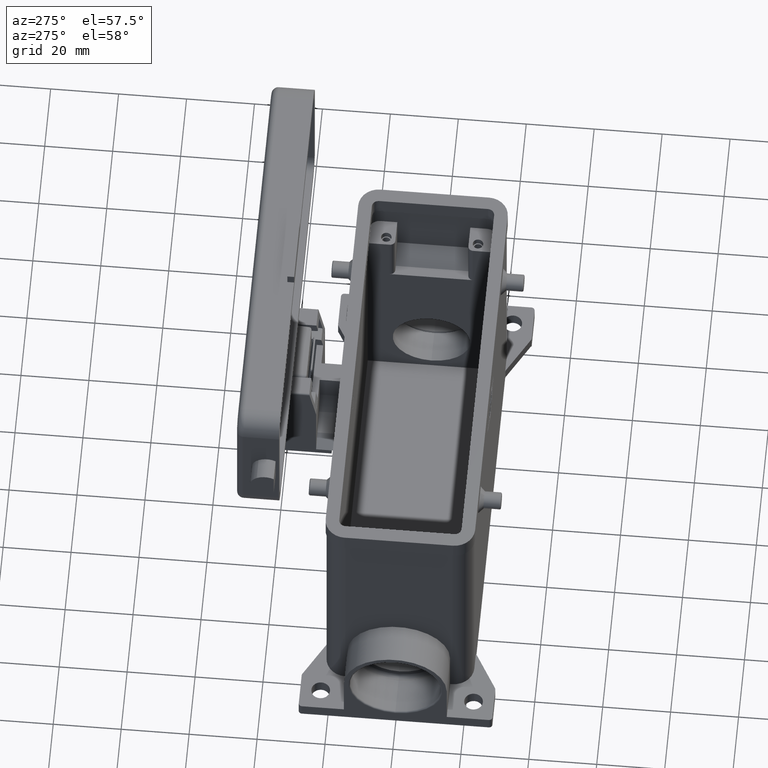
[diagram: clean part render]
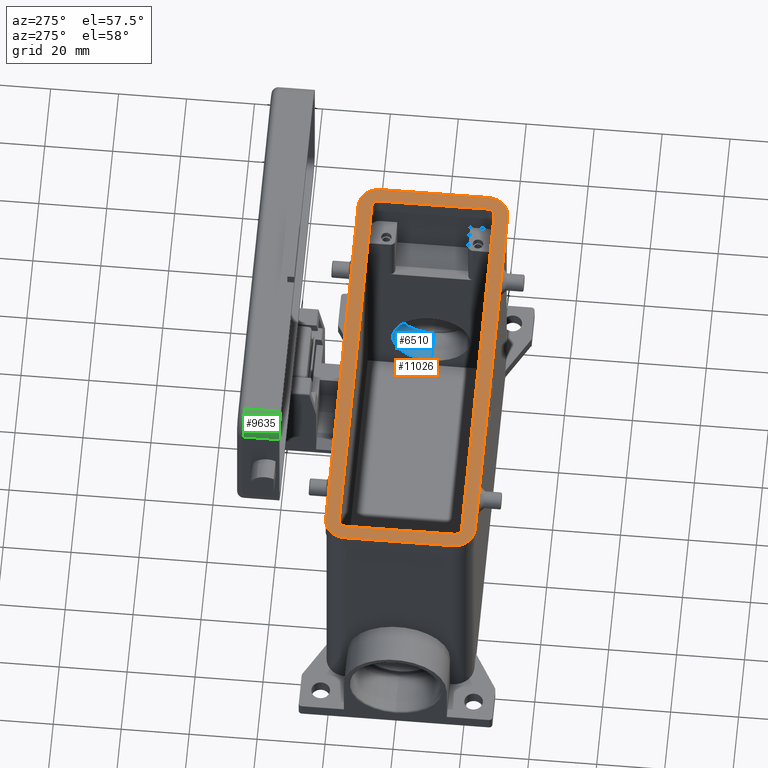
[diagram: same view with three faces highlighted in distinct colors, each labeled with its STEP entity id]
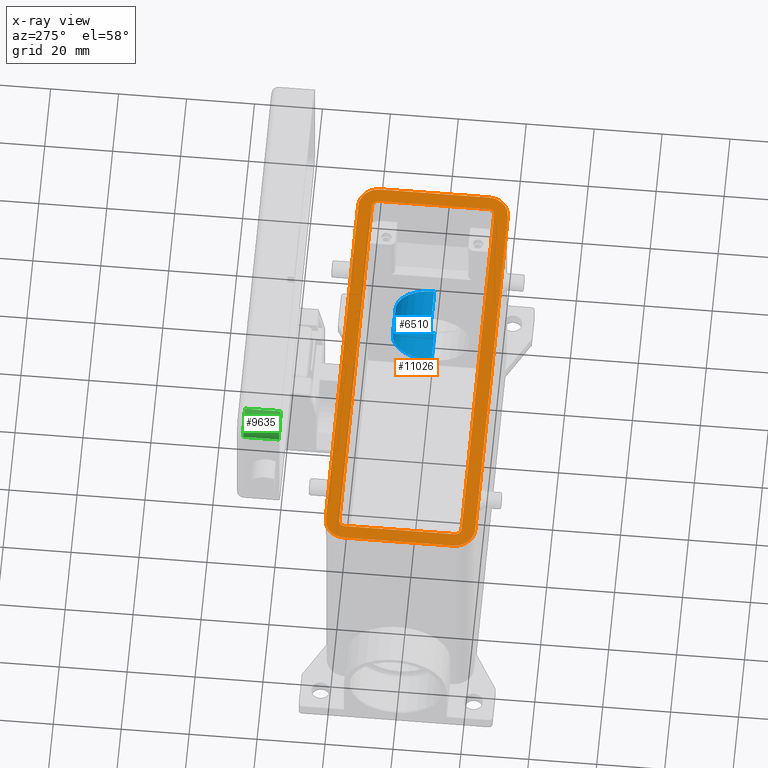
[diagram: x-ray of the same camera — body ghosted, the three highlighted faces saturated]
A machine part, auxiliary view with three faces highlighted in distinct colors.
The next image is the same camera in x-ray (body ghosted, the three faces saturated) — at least one of them is partly hidden behind the body in this view.
Their STEP definitions:

[orange] entity #11026 — the highlighted planar face has unit normal (0, 0, 1).
#10881=CARTESIAN_POINT('',(2.498002E-015,-1.179612E-015,29.000000000000007));
#10882=DIRECTION('',(0.0,0.0,1.0));
#10883=DIRECTION('',(1.0,0.0,0.0));
#10884=AXIS2_PLACEMENT_3D('',#10881,#10882,#10883);
#10885=PLANE('',#10884);
#10886=CARTESIAN_POINT('',(54.750000000000014,21.999999999999996,29.000000000000007));
#10887=VERTEX_POINT('',#10886);
#10888=CARTESIAN_POINT('',(60.750000000000021,15.999999999999996,29.000000000000007));
#10889=VERTEX_POINT('',#10888);
#10890=CARTESIAN_POINT('',(54.750000000000014,15.999999999999996,29.000000000000004));
#10891=DIRECTION('',(0.0,0.0,-1.0));
#10892=DIRECTION('',(-1.0,0.0,0.0));
#10893=AXIS2_PLACEMENT_3D('',#10890,#10891,#10892);
#10894=CIRCLE('',#10893,6.000000000000001);
#10895=EDGE_CURVE('',#10887,#10889,#10894,.T.);
#10896=ORIENTED_EDGE('',*,*,#10895,.F.);
#10897=CARTESIAN_POINT('',(-54.750000000000014,21.999999999999996,29.000000000000007));
#10898=VERTEX_POINT('',#10897);
#10899=CARTESIAN_POINT('',(-54.750000000000014,21.999999999999996,29.000000000000007));
#10900=DIRECTION('',(1.0,0.0,0.0));
#10901=VECTOR('',#10900,109.500000000000030);
#10902=LINE('',#10899,#10901);
#10903=EDGE_CURVE('',#10898,#10887,#10902,.T.);
#10904=ORIENTED_EDGE('',*,*,#10903,.F.);
#10905=CARTESIAN_POINT('',(-60.750000000000021,15.999999999999996,29.000000000000007));
#10906=VERTEX_POINT('',#10905);
#10907=CARTESIAN_POINT('',(-54.750000000000007,15.999999999999996,29.000000000000004));
#10908=DIRECTION('',(0.0,0.0,-1.0));
#10909=DIRECTION('',(0.0,-1.0,0.0));
#10910=AXIS2_PLACEMENT_3D('',#10907,#10908,#10909);
#10911=CIRCLE('',#10910,6.000000000000001);
#10912=EDGE_CURVE('',#10906,#10898,#10911,.T.);
#10913=ORIENTED_EDGE('',*,*,#10912,.F.);
#10914=CARTESIAN_POINT('',(-60.750000000000021,-15.999999999999996,29.000000000000007));
#10915=VERTEX_POINT('',#10914);
#10916=CARTESIAN_POINT('',(-60.750000000000021,-15.999999999999996,29.000000000000007));
#10917=DIRECTION('',(0.0,1.0,0.0));
#10918=VECTOR('',#10917,31.999999999999993);
#10919=LINE('',#10916,#10918);
#10920=EDGE_CURVE('',#10915,#10906,#10919,.T.);
#10921=ORIENTED_EDGE('',*,*,#10920,.F.);
#10922=CARTESIAN_POINT('',(-54.750000000000014,-21.999999999999996,29.000000000000007));
#10923=VERTEX_POINT('',#10922);
#10924=CARTESIAN_POINT('',(-54.750000000000014,-15.999999999999996,29.000000000000004));
#10925=DIRECTION('',(0.0,0.0,-1.0));
#10926=DIRECTION('',(1.0,0.0,0.0));
#10927=AXIS2_PLACEMENT_3D('',#10924,#10925,#10926);
#10928=CIRCLE('',#10927,6.000000000000001);
#10929=EDGE_CURVE('',#10923,#10915,#10928,.T.);
#10930=ORIENTED_EDGE('',*,*,#10929,.F.);
#10931=CARTESIAN_POINT('',(54.750000000000014,-21.999999999999996,29.000000000000007));
#10932=VERTEX_POINT('',#10931);
#10933=CARTESIAN_POINT('',(54.750000000000014,-21.999999999999996,29.000000000000007));
#10934=DIRECTION('',(-1.0,0.0,0.0));
#10935=VECTOR('',#10934,109.500000000000030);
#10936=LINE('',#10933,#10935);
#10937=EDGE_CURVE('',#10932,#10923,#10936,.T.);
#10938=ORIENTED_EDGE('',*,*,#10937,.F.);
#10939=CARTESIAN_POINT('',(60.750000000000021,-15.999999999999996,29.000000000000007));
#10940=VERTEX_POINT('',#10939);
#10941=CARTESIAN_POINT('',(54.750000000000014,-15.999999999999996,29.000000000000004));
#10942=DIRECTION('',(0.0,0.0,-1.0));
#10943=DIRECTION('',(0.0,1.0,0.0));
#10944=AXIS2_PLACEMENT_3D('',#10941,#10942,#10943);
#10945=CIRCLE('',#10944,6.000000000000001);
#10946=EDGE_CURVE('',#10940,#10932,#10945,.T.);
#10947=ORIENTED_EDGE('',*,*,#10946,.F.);
#10948=CARTESIAN_POINT('',(60.750000000000021,15.999999999999996,29.000000000000007));
#10949=DIRECTION('',(0.0,-1.0,0.0));
#10950=VECTOR('',#10949,31.999999999999993);
#10951=LINE('',#10948,#10950);
#10952=EDGE_CURVE('',#10889,#10940,#10951,.T.);
#10953=ORIENTED_EDGE('',*,*,#10952,.F.);
#10954=EDGE_LOOP('',(#10896,#10904,#10913,#10921,#10930,#10938,#10947,#10953));
#10955=FACE_OUTER_BOUND('',#10954,.T.);
#10956=CARTESIAN_POINT('',(54.750000000000007,18.0,29.000000000000004));
#10957=VERTEX_POINT('',#10956);
#10958=CARTESIAN_POINT('',(56.750000000000014,15.999999999999996,29.000000000000004));
#10959=VERTEX_POINT('',#10958);
#10960=CARTESIAN_POINT('',(54.750000000000014,15.999999999999996,29.000000000000007));
#10961=DIRECTION('',(0.0,0.0,-1.0));
#10962=DIRECTION('',(1.0,0.0,0.0));
#10963=AXIS2_PLACEMENT_3D('',#10960,#10961,#10962);
#10964=CIRCLE('',#10963,2.000000000000001);
#10965=EDGE_CURVE('',#10957,#10959,#10964,.T.);
#10966=ORIENTED_EDGE('',*,*,#10965,.T.);
#10967=CARTESIAN_POINT('',(56.750000000000014,-15.999999999999996,29.000000000000004));
#10968=VERTEX_POINT('',#10967);
#10969=CARTESIAN_POINT('',(56.750000000000014,15.999999999999996,29.000000000000004));
#10970=DIRECTION('',(0.0,-1.0,0.0));
#10971=VECTOR('',#10970,31.999999999999993);
#10972=LINE('',#10969,#10971);
#10973=EDGE_CURVE('',#10959,#10968,#10972,.T.);
#10974=ORIENTED_EDGE('',*,*,#10973,.T.);
#10975=CARTESIAN_POINT('',(54.750000000000014,-18.000000000000004,29.000000000000004));
#10976=VERTEX_POINT('',#10975);
#10977=CARTESIAN_POINT('',(54.750000000000014,-15.999999999999996,29.000000000000007));
#10978=DIRECTION('',(0.0,0.0,-1.0));
#10979=DIRECTION('',(0.0,-1.0,0.0));
#10980=AXIS2_PLACEMENT_3D('',#10977,#10978,#10979);
#10981=CIRCLE('',#10980,2.000000000000001);
#10982=EDGE_CURVE('',#10968,#10976,#10981,.T.);
#10983=ORIENTED_EDGE('',*,*,#10982,.T.);
#10984=CARTESIAN_POINT('',(-54.750000000000014,-18.000000000000004,29.000000000000004));
#10985=VERTEX_POINT('',#10984);
#10986=CARTESIAN_POINT('',(54.750000000000014,-18.000000000000004,29.000000000000004));
#10987=DIRECTION('',(-1.0,0.0,0.0));
#10988=VECTOR('',#10987,109.500000000000030);
#10989=LINE('',#10986,#10988);
#10990=EDGE_CURVE('',#10976,#10985,#10989,.T.);
#10991=ORIENTED_EDGE('',*,*,#10990,.T.);
#10992=CARTESIAN_POINT('',(-56.750000000000007,-15.999999999999996,29.000000000000004));
#10993=VERTEX_POINT('',#10992);
#10994=CARTESIAN_POINT('',(-54.750000000000014,-15.999999999999996,29.000000000000007));
#10995=DIRECTION('',(0.0,0.0,-1.0));
#10996=DIRECTION('',(-1.0,0.0,0.0));
#10997=AXIS2_PLACEMENT_3D('',#10994,#10995,#10996);
#10998=CIRCLE('',#10997,2.000000000000001);
#10999=EDGE_CURVE('',#10985,#10993,#10998,.T.);
#11000=ORIENTED_EDGE('',*,*,#10999,.T.);
#11001=CARTESIAN_POINT('',(-56.750000000000007,15.999999999999996,29.000000000000004));
#11002=VERTEX_POINT('',#11001);
#11003=CARTESIAN_POINT('',(-56.750000000000007,-15.999999999999996,29.000000000000004));
#11004=DIRECTION('',(0.0,1.0,0.0));
#11005=VECTOR('',#11004,31.999999999999993);
#11006=LINE('',#11003,#11005);
#11007=EDGE_CURVE('',#10993,#11002,#11006,.T.);
#11008=ORIENTED_EDGE('',*,*,#11007,.T.);
#11009=CARTESIAN_POINT('',(-54.750000000000007,18.0,29.000000000000004));
#11010=VERTEX_POINT('',#11009);
#11011=CARTESIAN_POINT('',(-54.750000000000007,15.999999999999996,29.000000000000007));
#11012=DIRECTION('',(0.0,0.0,-1.0));
#11013=DIRECTION('',(0.0,1.0,0.0));
#11014=AXIS2_PLACEMENT_3D('',#11011,#11012,#11013);
#11015=CIRCLE('',#11014,2.000000000000001);
#11016=EDGE_CURVE('',#11002,#11010,#11015,.T.);
#11017=ORIENTED_EDGE('',*,*,#11016,.T.);
#11018=CARTESIAN_POINT('',(-54.750000000000007,18.0,29.000000000000004));
#11019=DIRECTION('',(1.0,0.0,0.0));
#11020=VECTOR('',#11019,109.500000000000010);
#11021=LINE('',#11018,#11020);
#11022=EDGE_CURVE('',#11010,#10957,#11021,.T.);
#11023=ORIENTED_EDGE('',*,*,#11022,.T.);
#11024=EDGE_LOOP('',(#10966,#10974,#10983,#10991,#11000,#11008,#11017,#11023));
#11025=FACE_BOUND('',#11024,.T.);
#11026=ADVANCED_FACE('',(#10955,#11025),#10885,.T.);

[blue] entity #6510 — the highlighted cylindrical surface (partial cylindrical patch) has radius 11.39 mm, axis along (1, 0, 0).
#3626=CARTESIAN_POINT('',(59.0,0.0,-21.720000000000002));
#3627=VERTEX_POINT('',#3626);
#3628=CARTESIAN_POINT('',(49.500000000000014,1.394827E-015,-21.719999999999995));
#3629=VERTEX_POINT('',#3628);
#3630=CARTESIAN_POINT('',(59.0,0.0,-21.720000000000002));
#3631=DIRECTION('',(-1.0,0.0,0.0));
#3632=VECTOR('',#3631,9.499999999999986);
#3633=LINE('',#3630,#3632);
#3634=EDGE_CURVE('',#3627,#3629,#3633,.T.);
#3636=CARTESIAN_POINT('',(59.0,-1.394827E-015,-44.499999999999986));
#3637=VERTEX_POINT('',#3636);
#3645=CARTESIAN_POINT('',(49.500000000000014,1.394827E-015,-44.499999999999993));
#3646=VERTEX_POINT('',#3645);
#3647=CARTESIAN_POINT('',(49.500000000000014,1.394827E-015,-44.499999999999993));
#3648=DIRECTION('',(1.0,0.0,0.0));
#3649=VECTOR('',#3648,9.499999999999986);
#3650=LINE('',#3647,#3649);
#3651=EDGE_CURVE('',#3646,#3637,#3650,.T.);
#6487=CARTESIAN_POINT('',(56.500000000000000,0.0,-33.109999999999992));
#6488=DIRECTION('',(1.0,0.0,0.0));
#6489=DIRECTION('',(0.0,0.0,1.0));
#6490=AXIS2_PLACEMENT_3D('',#6487,#6488,#6489);
#6491=CYLINDRICAL_SURFACE('',#6490,11.389999999999990);
#6492=ORIENTED_EDGE('',*,*,#3634,.T.);
#6493=CARTESIAN_POINT('',(49.500000000000014,0.0,-33.109999999999992));
#6494=DIRECTION('',(1.0,0.0,0.0));
#6495=DIRECTION('',(0.0,0.0,1.0));
#6496=AXIS2_PLACEMENT_3D('',#6493,#6494,#6495);
#6497=CIRCLE('',#6496,11.389999999999997);
#6498=EDGE_CURVE('',#3646,#3629,#6497,.T.);
#6499=ORIENTED_EDGE('',*,*,#6498,.F.);
#6500=ORIENTED_EDGE('',*,*,#3651,.T.);
#6501=CARTESIAN_POINT('',(59.0,0.0,-33.109999999999992));
#6502=DIRECTION('',(1.0,0.0,0.0));
#6503=DIRECTION('',(0.0,0.0,1.0));
#6504=AXIS2_PLACEMENT_3D('',#6501,#6502,#6503);
#6505=CIRCLE('',#6504,11.389999999999993);
#6506=EDGE_CURVE('',#3637,#3627,#6505,.T.);
#6507=ORIENTED_EDGE('',*,*,#6506,.T.);
#6508=EDGE_LOOP('',(#6492,#6499,#6500,#6507));
#6509=FACE_OUTER_BOUND('',#6508,.T.);
#6510=ADVANCED_FACE('',(#6509),#6491,.F.);

[green] entity #9635 — the highlighted cylindrical surface (edge-blend (fillet) strip) has radius 6 mm, axis along (0, 1, 0).
#8420=CARTESIAN_POINT('',(-54.500000000000028,45.749999999999972,85.500000000000000));
#8421=VERTEX_POINT('',#8420);
#8479=CARTESIAN_POINT('',(-60.500000000000028,45.749999999999972,79.500000000000014));
#8480=VERTEX_POINT('',#8479);
#8488=CARTESIAN_POINT('',(-54.500000000000028,45.749999999999972,79.500000000000014));
#8489=DIRECTION('',(0.0,1.000000000000000,0.0));
#8490=DIRECTION('',(-0.707106781186547,0.0,0.707106781186548));
#8491=AXIS2_PLACEMENT_3D('',#8488,#8489,#8490);
#8492=CIRCLE('',#8491,6.000000000000004);
#8493=EDGE_CURVE('',#8480,#8421,#8492,.T.);
#9270=CARTESIAN_POINT('',(-54.500000000000028,35.250000000000000,85.500000000000000));
#9271=VERTEX_POINT('',#9270);
#9272=CARTESIAN_POINT('',(-54.500000000000028,35.250000000000000,85.500000000000000));
#9273=DIRECTION('',(0.0,1.0,0.0));
#9274=VECTOR('',#9273,10.499999999999972);
#9275=LINE('',#9272,#9274);
#9276=EDGE_CURVE('',#9271,#8421,#9275,.T.);
#9611=CARTESIAN_POINT('',(-54.500000000000028,35.250000000000000,79.500000000000014));
#9612=DIRECTION('',(0.0,1.0,0.0));
#9613=DIRECTION('',(1.0,0.0,0.0));
#9614=AXIS2_PLACEMENT_3D('',#9611,#9612,#9613);
#9615=CYLINDRICAL_SURFACE('',#9614,6.000000000000005);
#9616=ORIENTED_EDGE('',*,*,#8493,.F.);
#9617=CARTESIAN_POINT('',(-60.500000000000028,35.250000000000000,79.500000000000014));
#9618=VERTEX_POINT('',#9617);
#9619=CARTESIAN_POINT('',(-60.500000000000028,35.250000000000000,79.500000000000014));
#9620=DIRECTION('',(0.0,1.0,0.0));
#9621=VECTOR('',#9620,10.499999999999972);
#9622=LINE('',#9619,#9621);
#9623=EDGE_CURVE('',#9618,#8480,#9622,.T.);
#9624=ORIENTED_EDGE('',*,*,#9623,.F.);
#9625=CARTESIAN_POINT('',(-54.500000000000028,35.250000000000000,79.500000000000014));
#9626=DIRECTION('',(0.0,-1.0,0.0));
#9627=DIRECTION('',(1.0,0.0,0.0));
#9628=AXIS2_PLACEMENT_3D('',#9625,#9626,#9627);
#9629=CIRCLE('',#9628,6.000000000000005);
#9630=EDGE_CURVE('',#9271,#9618,#9629,.T.);
#9631=ORIENTED_EDGE('',*,*,#9630,.F.);
#9632=ORIENTED_EDGE('',*,*,#9276,.T.);
#9633=EDGE_LOOP('',(#9616,#9624,#9631,#9632));
#9634=FACE_OUTER_BOUND('',#9633,.T.);
#9635=ADVANCED_FACE('',(#9634),#9615,.T.);